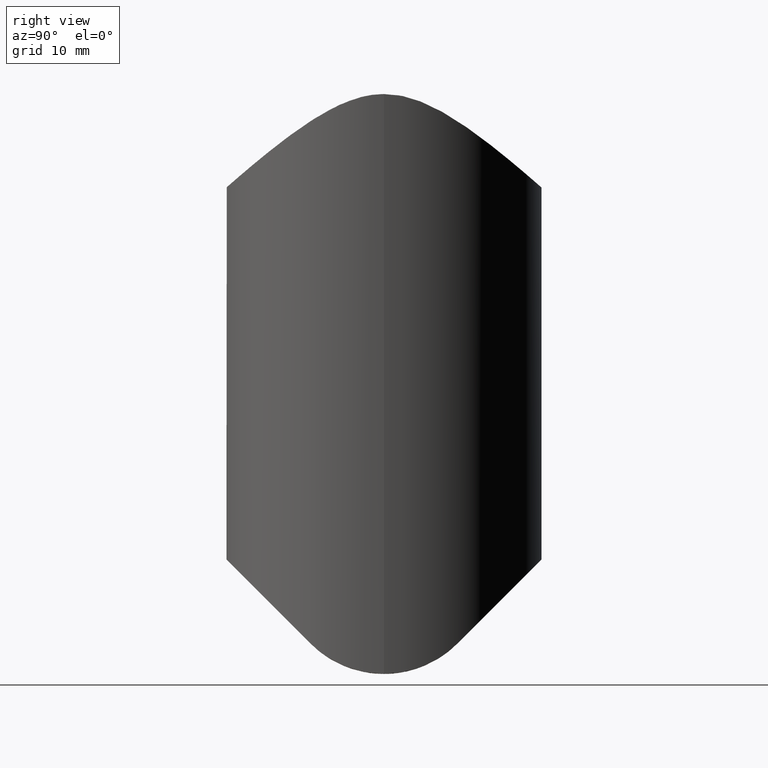
[diagram: clean part render]
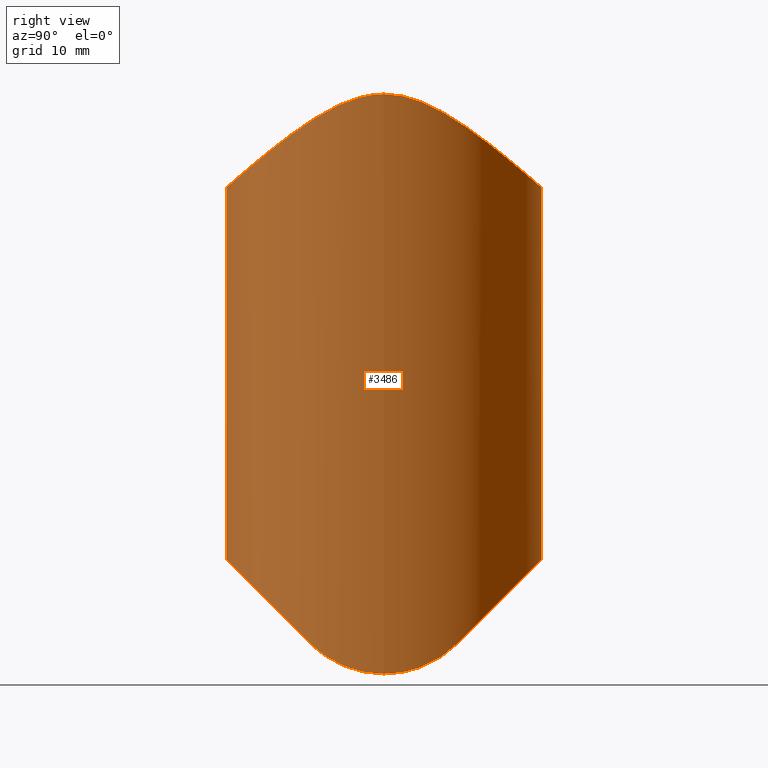
[diagram: same view with one face highlighted and labeled with its STEP entity id]
A machine part, right view. The second image highlights one B-rep face of the part: STEP entity #3486.
In plain terms, the highlighted cylindrical surface (bore or boss wall) has radius 21.2 mm, axis along (0, 0, 1).
Its self-contained STEP definition (entity closure, byte-faithful):
#53 = CARTESIAN_POINT ( 'NONE',  ( 20.37822105264515571, 5.861547358583872658, -40.60975741216689272 ) ) ;
#66 = CARTESIAN_POINT ( 'NONE',  ( -19.94419146322031366, 7.219722584351021766, 34.05163442060293022 ) ) ;
#100 = CARTESIAN_POINT ( 'NONE',  ( 19.09183637267333822, -9.243786917086966426, -38.43121308291303251 ) ) ;
#154 = CARTESIAN_POINT ( 'NONE',  ( -20.62931908667948733, -4.937671174590838596, 35.11586201277336272 ) ) ;
#203 = CARTESIAN_POINT ( 'NONE',  ( -10.00391576498439150, -18.69453692488314545, 25.69179903627292560 ) ) ;
#246 = CARTESIAN_POINT ( 'NONE',  ( -16.19715647493500654, -13.69350632152724323, 29.75343096745083216 ) ) ;
#296 = CARTESIAN_POINT ( 'NONE',  ( 0.5992993401474236981, -21.20478202979933968, 23.52080213603889192 ) ) ;
#390 = CARTESIAN_POINT ( 'NONE',  ( 14.26758304632108576, -15.73462341832112799, 28.15500989669029863 ) ) ;
#731 = EDGE_CURVE ( 'NONE', #8625, #7215, #2434, .T. ) ;
#809 = CARTESIAN_POINT ( 'NONE',  ( 21.19999999999999929, 0.7607316018210191766, 36.10856148159687251 ) ) ;
#856 = CARTESIAN_POINT ( 'NONE',  ( 16.16775112329284880, 13.77464031684857204, 29.69759144699613884 ) ) ;
#877 = CARTESIAN_POINT ( 'NONE',  ( -20.89062975067823658, -3.723830450166025763, -41.41783390835409051 ) ) ;
#900 = CARTESIAN_POINT ( 'NONE',  ( 18.35738798289526841, 10.62389000726081534, 31.97583591808911407 ) ) ;
#946 = CARTESIAN_POINT ( 'NONE',  ( 3.828703173773335244, 20.86444194102675098, 23.81915204452525003 ) ) ;
#971 = CARTESIAN_POINT ( 'NONE',  ( -19.41054783939787143, 8.561658490433368129, -38.99446201574200899 ) ) ;
#988 = CARTESIAN_POINT ( 'NONE',  ( 19.41009460546721144, 8.562612514642292894, -38.99365696708427720 ) ) ;
#1001 = CARTESIAN_POINT ( 'NONE',  ( 0.8570938160425978225, 21.19576360719492669, 23.52871889231639813 ) ) ;
#1015 = EDGE_CURVE ( 'NONE', #5379, #10726, #4618, .T. ) ;
#1092 = CARTESIAN_POINT ( 'NONE',  ( -20.36288625874305680, 5.937005181913807661, 34.68578424057155729 ) ) ;
#1153 = ORIENTED_EDGE ( 'NONE', *, *, #4220, .F. ) ;
#1180 = FACE_OUTER_BOUND ( 'NONE', #2340, .T. ) ;
#1189 = CARTESIAN_POINT ( 'NONE',  ( -21.17139254519067393, -1.327900722634554942, 36.05532838118423911 ) ) ;
#1236 = CARTESIAN_POINT ( 'NONE',  ( -20.45541735194242960, -5.611173856344445987, 34.83223599468176701 ) ) ;
#1284 = CARTESIAN_POINT ( 'NONE',  ( -14.40607568455914844, -15.60842448588201137, 28.25692576045749504 ) ) ;
#1334 = CARTESIAN_POINT ( 'NONE',  ( 5.052017920772571280, -20.60256207620233226, 24.04784085383190373 ) ) ;
#1424 = CARTESIAN_POINT ( 'NONE',  ( 20.39193468106632068, -5.807951388633579626, 34.73588361584385353 ) ) ;
#1473 = CARTESIAN_POINT ( 'NONE',  ( 9.776366241319037087, -18.82411369512748323, 25.58208157620547141 ) ) ;
#1614 = ORIENTED_EDGE ( 'NONE', *, *, #3523, .F. ) ;
#1616 = CARTESIAN_POINT ( 'NONE',  ( 21.19999999999999218, -4.607859233063393845E-16, 36.10856148159686541 ) ) ;
#1875 = CARTESIAN_POINT ( 'NONE',  ( -20.37822105264512018, -5.861547358583981904, -40.60975741216687140 ) ) ;
#1920 = CARTESIAN_POINT ( 'NONE',  ( -19.09162464916670032, -9.244189226472064647, -38.43081077352793073 ) ) ;
#1943 = CARTESIAN_POINT ( 'NONE',  ( -13.19870381461336883, 16.60337798851294266, 27.44154372066829595 ) ) ;
#1987 = CARTESIAN_POINT ( 'NONE',  ( 12.79854085659568064, 16.91417942586904033, 27.18536005029367431 ) ) ;
#2008 = CARTESIAN_POINT ( 'NONE',  ( -21.12346108678567091, 1.859530999978814103, -41.77499633901737752 ) ) ;
#2030 = CARTESIAN_POINT ( 'NONE',  ( -3.977638343958842526, 20.82676644983991565, 23.85199950302858340 ) ) ;
#2081 = CARTESIAN_POINT ( 'NONE',  ( -14.68694656133646426, 15.30210980942055343, 28.49542990981161239 ) ) ;
#2177 = CARTESIAN_POINT ( 'NONE',  ( -21.19613358253338475, 0.5540781783344892464, 36.10147572910654645 ) ) ;
#2313 = CARTESIAN_POINT ( 'NONE',  ( -20.05044987211627117, -6.920175649073054380, 34.20874045013990639 ) ) ;
#2340 = EDGE_LOOP ( 'NONE', ( #2456, #1614, #6661, #10323 ) ) ;
#2360 = CARTESIAN_POINT ( 'NONE',  ( -0.8999169650053071567, -21.19415226156729659, 23.53013339016800742 ) ) ;
#2368 = VERTEX_POINT ( 'NONE', #4819 ) ;
#2434 = B_SPLINE_CURVE_WITH_KNOTS ( 'NONE', 3,
 ( #5325, #5420, #988, #8623, #14040, #12982, #53, #10925, #10734, #7588, #8672, #8515, #9773, #3288, #10879, #6415, #13031, #9623, #7640, #11936, #5521, #3133, #6566, #13993, #100, #7490 ),
 .UNSPECIFIED., .F., .F.,
 ( 4, 2, 2, 2, 2, 2, 2, 2, 2, 2, 2, 2, 4 ),
 ( 1.561251128379126385E-17, 0.002812131151368518246, 0.004218196727052776936, 0.005624262302737036492, 0.008436393454105545198, 0.009842459029789800418, 0.01124852460547405390, 0.01265459018115830739, 0.01406065575684256261, 0.01687278690821106958, 0.01827885248389531786, 0.01968491805957956614, 0.02249704921094805576 ),
 .UNSPECIFIED. ) ;
#2456 = ORIENTED_EDGE ( 'NONE', *, *, #731, .F. ) ;
#2459 = CARTESIAN_POINT ( 'NONE',  ( 5.762301184145837141, -20.41495202547942256, 24.21140025201506774 ) ) ;
#2550 = CARTESIAN_POINT ( 'NONE',  ( -18.76061753692396294, 9.873157024643191448, -37.80184297535679860 ) ) ;
#2697 = CYLINDRICAL_SURFACE ( 'NONE', #5129, 21.19999999999999929 ) ;
#2948 = CARTESIAN_POINT ( 'NONE',  ( -21.07359397865521444, -2.356897955611011675, -41.69893950458479992 ) ) ;
#3008 = CARTESIAN_POINT ( 'NONE',  ( 16.96650338785486056, 12.77562585898296632, 30.45766644754966279 ) ) ;
#3025 = CARTESIAN_POINT ( 'NONE',  ( -21.19979146188292418, -0.4779389557462169202, -41.89112188967123984 ) ) ;
#3051 = CARTESIAN_POINT ( 'NONE',  ( 5.989666282539716669, 20.38969150912193129, 24.23362212893257350 ) ) ;
#3076 = CARTESIAN_POINT ( 'NONE',  ( -19.99062911680855947, 7.070452229573360725, -39.97747371601211341 ) ) ;
#3097 = CARTESIAN_POINT ( 'NONE',  ( -5.059804035448618009, 20.60052458868202407, 24.04961701857542522 ) ) ;
#3117 = CARTESIAN_POINT ( 'NONE',  ( -21.07702899861313739, 2.327078583938078093, -41.70419686316483165 ) ) ;
#3133 = CARTESIAN_POINT ( 'NONE',  ( 19.99062911680850974, -7.070452229573480629, -39.97747371601206368 ) ) ;
#3147 = CARTESIAN_POINT ( 'NONE',  ( -1.379351382647282076, 21.16843550293391729, 23.55273133158973309 ) ) ;
#3248 = CARTESIAN_POINT ( 'NONE',  ( -20.90685473131000549, -3.532539769826033460, 35.58623692906678571 ) ) ;
#3288 = CARTESIAN_POINT ( 'NONE',  ( 21.20020442195959731, -0.4592560722174832688, -41.89174889746874442 ) ) ;
#3299 = CARTESIAN_POINT ( 'NONE',  ( -18.30954737960178136, 10.76482312935650754, 31.89212507464895552 ) ) ;
#3344 = CARTESIAN_POINT ( 'NONE',  ( -18.92877723315591965, 9.635848647165394354, 32.65189449167129965 ) ) ;
#3359 = DIRECTION ( 'NONE',  ( 1.000000000000000000, 0.000000000000000000, 0.000000000000000000 ) ) ;
#3434 = CARTESIAN_POINT ( 'NONE',  ( 16.88200995086582523, -12.83973443144087234, 30.39691521375912231 ) ) ;
#3486 = ADVANCED_FACE ( 'NONE', ( #1180, #13695 ), #2697, .T. ) ;
#3513 =( BOUNDED_CURVE ( )  B_SPLINE_CURVE ( 3, ( #5548, #7756, #9991, #9944 ),
 .UNSPECIFIED., .F., .F. ) 
 B_SPLINE_CURVE_WITH_KNOTS ( ( 4, 4 ),
 ( 5.196831337156892161, 7.369539277202277638 ),
 .UNSPECIFIED. ) 
 CURVE ( )  GEOMETRIC_REPRESENTATION_ITEM ( )  RATIONAL_B_SPLINE_CURVE ( ( 1.000000000000000000, 0.6438099693284029534, 0.6438099693284029534, 1.000000000000000000 ) ) 
 REPRESENTATION_ITEM ( '' )  );
#3523 = EDGE_CURVE ( 'NONE', #10726, #8625, #3513, .T. ) ;
#3577 = CARTESIAN_POINT ( 'NONE',  ( -6.057539750127693523, -20.37040628734392200, 24.25041600823640664 ) ) ;
#3627 = CARTESIAN_POINT ( 'NONE',  ( 16.06516379777915304, -13.84816061437716961, 29.63490615289967778 ) ) ;
#3758 = CARTESIAN_POINT ( 'NONE',  ( 20.65678568497506973, -4.781809977681571233, 35.16336350674345823 ) ) ;
#4074 = CARTESIAN_POINT ( 'NONE',  ( -20.89346145033796631, 3.710667487130780096, -41.42222334977741838 ) ) ;
#4097 = CARTESIAN_POINT ( 'NONE',  ( -14.20856944367890051, 15.74784103867826701, 28.13746971191927670 ) ) ;
#4148 = CARTESIAN_POINT ( 'NONE',  ( -2.501427200603757228, 21.05526489811397184, 23.65196207914110005 ) ) ;
#4169 = CARTESIAN_POINT ( 'NONE',  ( -18.76061753692396294, 9.873157024643191448, -37.80184297535679860 ) ) ;
#4214 = CARTESIAN_POINT ( 'NONE',  ( -21.18406620477865232, -0.9476406119230708081, -41.86728111303332156 ) ) ;
#4220 = EDGE_CURVE ( 'NONE', #2368, #2368, #8311, .T. ) ;
#4246 = CARTESIAN_POINT ( 'NONE',  ( -16.86133393032116956, 12.91574079727568325, 30.35350802484506971 ) ) ;
#4390 = CARTESIAN_POINT ( 'NONE',  ( -20.54646411576973009, 5.272054584498080843, 34.98031200607299951 ) ) ;
#4484 = CARTESIAN_POINT ( 'NONE',  ( -19.04726911328291195, -9.403061671351816031, 32.80248823128799529 ) ) ;
#4536 = CARTESIAN_POINT ( 'NONE',  ( -9.377422683829413685, -19.01651874759216554, 25.41734066544023918 ) ) ;
#4590 = CARTESIAN_POINT ( 'NONE',  ( 17.26894050692186866, -12.31449342644357792, 30.78460162156350677 ) ) ;
#4618 = B_SPLINE_CURVE_WITH_KNOTS ( 'NONE', 3,
 ( #5179, #1920, #9476, #13833, #6357, #12773, #1875, #13783, #877, #2948, #11611, #4214, #3025, #8498, #13930, #2008, #3117, #4074, #7381, #13977, #8411, #3076, #6230, #971, #10722, #4169 ),
 .UNSPECIFIED., .F., .F.,
 ( 4, 2, 2, 2, 2, 2, 2, 2, 2, 2, 2, 2, 4 ),
 ( 1.163687884334659274E-17, 0.002812131151368530389, 0.004218196727052783007, 0.005624262302737037360, 0.008436393454105536524, 0.009842459029789788275, 0.01124852460547403656, 0.01265459018115828657, 0.01406065575684253485, 0.01687278690821103488, 0.01827885248389528317, 0.01968491805957953145, 0.02249704921094801413 ),
 .UNSPECIFIED. ) ;
#4639 = CARTESIAN_POINT ( 'NONE',  ( -1.646797548463653893, -21.14920743253038182, 23.56961009978418531 ) ) ;
#4732 = CARTESIAN_POINT ( 'NONE',  ( -4.244829350413268365, -20.77400722764772212, 23.89811363479034156 ) ) ;
#4819 = CARTESIAN_POINT ( 'NONE',  ( 21.19999999999999929, 0.000000000000000000, 36.10856148159686541 ) ) ;
#4964 = CARTESIAN_POINT ( 'NONE',  ( 21.18705007545193908, -0.7651361944628163325, 36.08485221934159881 ) ) ;
#5129 = AXIS2_PLACEMENT_3D ( 'NONE', #8846, #11962, #3359 ) ;
#5176 =( BOUNDED_CURVE ( )  B_SPLINE_CURVE ( 3, ( #7409, #9593, #10895, #12946 ),
 .UNSPECIFIED., .F., .F. ) 
 B_SPLINE_CURVE_WITH_KNOTS ( ( 4, 4 ),
 ( 5.196831337156896602, 7.369539277202275862 ),
 .UNSPECIFIED. ) 
 CURVE ( )  GEOMETRIC_REPRESENTATION_ITEM ( )  RATIONAL_B_SPLINE_CURVE ( ( 1.000000000000000000, 0.6438099693284047298, 0.6438099693284047298, 1.000000000000000000 ) ) 
 REPRESENTATION_ITEM ( '' )  );
#5179 = CARTESIAN_POINT ( 'NONE',  ( -18.76061753692392386, -9.873157024643271384, -37.80184297535672044 ) ) ;
#5292 = CARTESIAN_POINT ( 'NONE',  ( 11.70097173117911105, 17.69122308532080012, 26.53936057573138640 ) ) ;
#5325 = CARTESIAN_POINT ( 'NONE',  ( 18.76061753692390965, 9.873157024643191448, -37.80184297535672044 ) ) ;
#5379 = VERTEX_POINT ( 'NONE', #7138 ) ;
#5383 = CARTESIAN_POINT ( 'NONE',  ( -21.06282559943587884, -2.436221136448912805, 35.86037302850127162 ) ) ;
#5420 = CARTESIAN_POINT ( 'NONE',  ( 19.09162464916675006, 9.244189226471975829, -38.43081077352793073 ) ) ;
#5485 = CARTESIAN_POINT ( 'NONE',  ( -21.20554532945919490, -0.5806661566480650905, 36.11872383202573644 ) ) ;
#5521 = CARTESIAN_POINT ( 'NONE',  ( 20.25508682692433027, -6.272798805176956094, -40.41133697097598798 ) ) ;
#5548 = CARTESIAN_POINT ( 'NONE',  ( -18.76061753692396294, 9.873157024643191448, -37.80184297535679860 ) ) ;
#5632 = CARTESIAN_POINT ( 'NONE',  ( -3.875882088453088237, -20.84607472227184033, 23.83510850980708895 ) ) ;
#5722 = CARTESIAN_POINT ( 'NONE',  ( 19.74765873688392759, -7.739758821920953658, 33.76654086413228129 ) ) ;
#5768 = CARTESIAN_POINT ( 'NONE',  ( -18.43835679299219521, -10.54151119859169228, 32.04397155093638361 ) ) ;
#5812 = CARTESIAN_POINT ( 'NONE',  ( -13.41327811795210145, -16.47184304281851652, 27.55248098906725573 ) ) ;
#6216 = EDGE_LOOP ( 'NONE', ( #1153 ) ) ;
#6230 = CARTESIAN_POINT ( 'NONE',  ( -19.85036992409665757, 7.453901982157362660, -39.74378386386362649 ) ) ;
#6250 = CARTESIAN_POINT ( 'NONE',  ( -12.66552224037674534, 17.01437272971190851, 27.10256723657073863 ) ) ;
#6298 = CARTESIAN_POINT ( 'NONE',  ( 21.04311487925438939, 2.600411042969252851, 35.82526941153323463 ) ) ;
#6336 = CARTESIAN_POINT ( 'NONE',  ( 11.12876944867947593, 18.05727372709984380, 26.23171522967705016 ) ) ;
#6357 = CARTESIAN_POINT ( 'NONE',  ( -19.98972343943037089, -7.072982343735226607, -39.97596949918038689 ) ) ;
#6380 = CARTESIAN_POINT ( 'NONE',  ( -10.98734972168231572, 18.18173473906202986, 26.13033894899644594 ) ) ;
#6415 = CARTESIAN_POINT ( 'NONE',  ( 21.12346108678567802, -1.859530999978940669, -41.77499633901737042 ) ) ;
#6566 = CARTESIAN_POINT ( 'NONE',  ( 19.85036992409661494, -7.453901982157483452, -39.74378386386362649 ) ) ;
#6661 = ORIENTED_EDGE ( 'NONE', *, *, #1015, .F. ) ;
#6750 = CARTESIAN_POINT ( 'NONE',  ( -7.428390811851950382, -19.90728424505650196, 24.65346359776447116 ) ) ;
#6805 = CARTESIAN_POINT ( 'NONE',  ( 19.98206215831099541, -7.115016007147695554, 34.10725467785898957 ) ) ;
#6848 = CARTESIAN_POINT ( 'NONE',  ( 11.57557648746820966, -17.77401718948302189, 26.47002558068056288 ) ) ;
#6899 = CARTESIAN_POINT ( 'NONE',  ( 20.57309299853876539, -5.129438940379512424, 35.02590606750470670 ) ) ;
#6996 = CARTESIAN_POINT ( 'NONE',  ( 21.14836757930289579, -1.527087688503413920, 36.01434459721696157 ) ) ;
#7040 = CARTESIAN_POINT ( 'NONE',  ( 21.19740071756693567, -0.3830497548331253110, 36.10379352461025348 ) ) ;
#7138 = CARTESIAN_POINT ( 'NONE',  ( -18.76061753692392386, -9.873157024643271384, -37.80184297535672044 ) ) ;
#7215 = VERTEX_POINT ( 'NONE', #12201 ) ;
#7360 = CARTESIAN_POINT ( 'NONE',  ( 20.00715471155248082, 7.043729142430191104, 34.14443515223382519 ) ) ;
#7381 = CARTESIAN_POINT ( 'NONE',  ( -20.71517503758463974, 4.591754994418201896, -41.14663139746622278 ) ) ;
#7402 = CARTESIAN_POINT ( 'NONE',  ( 7.355998353420206470, 19.93388680068092000, 24.63040782151362507 ) ) ;
#7409 = CARTESIAN_POINT ( 'NONE',  ( 18.76061753692390965, -9.873157024643271384, -37.80184297535672044 ) ) ;
#7490 = CARTESIAN_POINT ( 'NONE',  ( 18.76061753692390965, -9.873157024643271384, -37.80184297535672044 ) ) ;
#7550 = CARTESIAN_POINT ( 'NONE',  ( -20.97635834696324153, 3.158545356204265797, 35.70651495239139450 ) ) ;
#7588 = CARTESIAN_POINT ( 'NONE',  ( 21.07359397865523221, 2.356897955610893103, -41.69893950458481413 ) ) ;
#7640 = CARTESIAN_POINT ( 'NONE',  ( 20.71517503758461487, -4.591754994418326241, -41.14663139746621567 ) ) ;
#7742 = CARTESIAN_POINT ( 'NONE',  ( -17.38037110746650171, -12.15634875530774117, 30.89956891561283925 ) ) ;
#7756 = CARTESIAN_POINT ( 'NONE',  ( -9.713330760469776948, 27.06448564792726685, -20.61051435207272675 ) ) ;
#7794 = CARTESIAN_POINT ( 'NONE',  ( -3.134448869397681303, -20.97037251875283204, 23.72634411886764383 ) ) ;
#7882 = CARTESIAN_POINT ( 'NONE',  ( 20.29439568384520243, -6.139549580194636036, 34.58317013806716744 ) ) ;
#7927 = CARTESIAN_POINT ( 'NONE',  ( 18.76061753692390965, 9.873157024643191448, -37.80184297535672044 ) ) ;
#8015 = CARTESIAN_POINT ( 'NONE',  ( 20.99808804751277691, -3.012252433823535469, 35.74480758918370782 ) ) ;
#8064 = CARTESIAN_POINT ( 'NONE',  ( 20.88157022807384777, -3.730151578770624088, 35.53960156782886770 ) ) ;
#8311 = B_SPLINE_CURVE_WITH_KNOTS ( 'NONE', 3,
 ( #8529, #809, #10744, #6298, #8478, #13858, #12896, #9500, #13812, #7360, #10550, #9587, #13956, #900, #8433, #3008, #856, #14005, #12798, #11633, #1987, #5292, #6336, #9543, #13907, #7402, #3051, #946, #12705, #10644, #1001, #8347, #3147, #4148, #10592, #11716, #2030, #3097, #9449, #10695, #11761, #12841, #6380, #6250, #1943, #4097, #2081, #9635, #4246, #3299, #3344, #9831, #66, #1092, #4390, #12047, #7550, #8578, #10791, #11900, #2177, #5485, #1189, #5383, #10937, #3248, #11988, #154, #1236, #2313, #9877, #4484, #5768, #7742, #12090, #246, #8833, #1284, #5812, #11212, #8978, #12140, #203, #4536, #13337, #6750, #3577, #4732, #5632, #7794, #13291, #4639, #2360, #296, #10072, #11166, #13244, #1334, #2459, #12278, #8882, #11077, #1473, #9929, #6848, #11121, #390, #9019, #3627, #3434, #4590, #10024, #12182, #5722, #6805, #7882, #1424, #6899, #3758, #8064, #8015, #9255, #6996, #13473, #4964, #7040, #9165, #1616 ),
 .UNSPECIFIED., .T., .F.,
 ( 4, 2, 2, 2, 2, 2, 2, 2, 2, 2, 2, 2, 2, 2, 2, 2, 2, 2, 2, 2, 2, 2, 2, 2, 2, 2, 2, 2, 2, 2, 2, 2, 2, 2, 2, 2, 2, 2, 2, 2, 2, 2, 2, 2, 2, 2, 2, 2, 2, 2, 2, 2, 2, 2, 2, 2, 2, 2, 2, 2, 2, 2, 2, 4 ),
 ( 0.000000000000000000, 0.002241287828992608294, 0.003361931743488913524, 0.004482575657985219189, 0.006723863486977819243, 0.008965151315970419296, 0.01120643914496302282, 0.01344772697395562461, 0.01793030263194083859, 0.02017159046093345079, 0.02241287828992605605, 0.02465416611891866824, 0.02689545394791127350, 0.03137802960589648749, 0.03361931743488909968, 0.03586060526388170494, 0.03810189309287431714, 0.03922253700737061977, 0.04034318092186692239, 0.04258446875085952765, 0.04482575657985213985, 0.04930833223783735730, 0.05154962006682996256, 0.05379090789582257476, 0.05827348355380779221, 0.06275605921179300273, 0.06499734704078562186, 0.06723863486977822712, 0.06947992269877083238, 0.07060056661326713501, 0.07172121052776343764, 0.07396249835675604289, 0.07508314227125235940, 0.07620378618574866203, 0.07844507401474126729, 0.08068636184373388642, 0.08516893750171908306, 0.08741022533071170220, 0.08965151315970430745, 0.09413408881768953185, 0.09637537664668213711, 0.09749602056117843973, 0.09861666447567474236, 0.1030992401336599668, 0.1042198840481562694, 0.1053405279626525859, 0.1075818157916452050, 0.1098231036206378380, 0.1120643914496304572, 0.1143056792786230902, 0.1165469671076156954, 0.1187882549366083285, 0.1210295427656009476, 0.1255121184235861720, 0.1277534062525788050, 0.1299946940815714103, 0.1344772697395566208, 0.1367185575685492260, 0.1378392014830455148, 0.1389598453975418313, 0.1412011332265344643, 0.1423217771410307531, 0.1428820990982789252, 0.1434424210555270696 ),
 .UNSPECIFIED. ) ;
#8347 = CARTESIAN_POINT ( 'NONE',  ( -0.6328581008026452626, 21.20364344460252681, 23.52180162452549439 ) ) ;
#8411 = CARTESIAN_POINT ( 'NONE',  ( -20.25508682692436935, 6.272798805176833525, -40.41133697097599509 ) ) ;
#8433 = CARTESIAN_POINT ( 'NONE',  ( 18.02703324573773003, 11.17478347359660340, 31.59651591960012951 ) ) ;
#8478 = CARTESIAN_POINT ( 'NONE',  ( 20.99518966925268515, 2.962050479155549088, 35.74028062210823720 ) ) ;
#8498 = CARTESIAN_POINT ( 'NONE',  ( -21.20020442195959731, 0.4592560722173618104, -41.89174889746876573 ) ) ;
#8515 = CARTESIAN_POINT ( 'NONE',  ( 21.18406620477865943, 0.9476406119229469072, -41.86728111303332156 ) ) ;
#8529 = CARTESIAN_POINT ( 'NONE',  ( 21.19999999999999218, -4.607859233063393845E-16, 36.10856148159686541 ) ) ;
#8578 = CARTESIAN_POINT ( 'NONE',  ( -21.10295424153486010, 2.059448189816778019, 35.93211882720227379 ) ) ;
#8623 = CARTESIAN_POINT ( 'NONE',  ( 19.84957469726052892, 7.455998307077904563, -39.74244542270219682 ) ) ;
#8625 = VERTEX_POINT ( 'NONE', #7927 ) ;
#8672 = CARTESIAN_POINT ( 'NONE',  ( 21.12091805891888185, 1.889313114929739745, -41.77111903822257233 ) ) ;
#8833 = CARTESIAN_POINT ( 'NONE',  ( -15.76577616875667331, -14.18836793598355150, 29.37182178562772350 ) ) ;
#8846 = CARTESIAN_POINT ( 'NONE',  ( 0.000000000000000000, 0.000000000000000000, -46.00000000000000000 ) ) ;
#8882 = CARTESIAN_POINT ( 'NONE',  ( 7.838284737744086961, -19.71068788427851715, 24.82172239114206747 ) ) ;
#8978 = CARTESIAN_POINT ( 'NONE',  ( -11.20650900769452107, -18.00919104853146635, 26.27220752538120507 ) ) ;
#9019 = CARTESIAN_POINT ( 'NONE',  ( 15.63389383173102409, -14.33342034139705312, 29.25906332649878294 ) ) ;
#9165 = CARTESIAN_POINT ( 'NONE',  ( 21.19999999999998863, -0.1901829004552553770, 36.10856148159685830 ) ) ;
#9255 = CARTESIAN_POINT ( 'NONE',  ( 21.11770560777527095, -1.902853503920007405, 35.95870011411939515 ) ) ;
#9449 = CARTESIAN_POINT ( 'NONE',  ( -5.765700953092397718, 20.41380111013801013, 24.21239766642771585 ) ) ;
#9476 = CARTESIAN_POINT ( 'NONE',  ( -19.41009460546716525, -8.562612514642394146, -38.99365696708427720 ) ) ;
#9500 = CARTESIAN_POINT ( 'NONE',  ( 20.59421893871964926, 5.081957251331890468, 35.05820584653805838 ) ) ;
#9543 = CARTESIAN_POINT ( 'NONE',  ( 9.932899202193443244, 18.74172236845740258, 25.65225074787231208 ) ) ;
#9587 = CARTESIAN_POINT ( 'NONE',  ( 19.25834572351404717, 8.887863037567722557, 33.09655174949588741 ) ) ;
#9593 = CARTESIAN_POINT ( 'NONE',  ( 9.713330760469684577, -27.06448564792724554, -20.61051435207275162 ) ) ;
#9623 = CARTESIAN_POINT ( 'NONE',  ( 20.89346145033794144, -3.710667487130901776, -41.42222334977739706 ) ) ;
#9635 = CARTESIAN_POINT ( 'NONE',  ( -16.04934571228517726, 13.91195018205658585, 29.59185218863818179 ) ) ;
#9773 = CARTESIAN_POINT ( 'NONE',  ( 21.19979146188292773, 0.4779389557460976823, -41.89112188967124695 ) ) ;
#9831 = CARTESIAN_POINT ( 'NONE',  ( -19.70897052989555576, 7.837316334376752458, 33.71178288087186559 ) ) ;
#9877 = CARTESIAN_POINT ( 'NONE',  ( -19.81796637703257957, -7.558585585020061615, 33.86693712264892753 ) ) ;
#9929 = CARTESIAN_POINT ( 'NONE',  ( 10.99019997192858078, -18.14221865893224361, 26.16012407793472860 ) ) ;
#9944 = CARTESIAN_POINT ( 'NONE',  ( 18.76061753692390965, 9.873157024643191448, -37.80184297535672044 ) ) ;
#9991 = CARTESIAN_POINT ( 'NONE',  ( 9.713330760469689906, 27.06448564792730593, -20.61051435207269478 ) ) ;
#10024 = CARTESIAN_POINT ( 'NONE',  ( 18.35259929000591583, -10.69178739157260338, 31.94216637868228759 ) ) ;
#10072 = CARTESIAN_POINT ( 'NONE',  ( 1.351634497376335009, -21.17047566304135486, 23.55094095006732502 ) ) ;
#10323 = ORIENTED_EDGE ( 'NONE', *, *, #12671, .F. ) ;
#10550 = CARTESIAN_POINT ( 'NONE',  ( 19.77521756840307532, 7.669338922180766183, 33.80576052837285062 ) ) ;
#10592 = CARTESIAN_POINT ( 'NONE',  ( -2.875685406383693632, 21.00737035516542051, 23.69393772533690168 ) ) ;
#10644 = CARTESIAN_POINT ( 'NONE',  ( 1.600552284528298008, 21.15267129505331667, 23.56656937056847667 ) ) ;
#10695 = CARTESIAN_POINT ( 'NONE',  ( -7.148069708100685204, 19.97177214703030756, 24.59595939619725868 ) ) ;
#10722 = CARTESIAN_POINT ( 'NONE',  ( -19.09183637267338085, 9.243786917086877608, -38.43121308291303251 ) ) ;
#10726 = VERTEX_POINT ( 'NONE', #2550 ) ;
#10734 = CARTESIAN_POINT ( 'NONE',  ( 20.89062975067825789, 3.723830450165912076, -41.41783390835409051 ) ) ;
#10744 = CARTESIAN_POINT ( 'NONE',  ( 21.15925873928337708, 1.505010053001364811, 36.03311591850231821 ) ) ;
#10791 = CARTESIAN_POINT ( 'NONE',  ( -21.13600295169353771, 1.688561807819377369, 35.99192591776143502 ) ) ;
#10879 = CARTESIAN_POINT ( 'NONE',  ( 21.18489083157697550, -0.9267493075242991818, -41.86853181177443872 ) ) ;
#10895 = CARTESIAN_POINT ( 'NONE',  ( -9.713330760469684577, -27.06448564792724554, -20.61051435207275517 ) ) ;
#10925 = CARTESIAN_POINT ( 'NONE',  ( 20.71348879695353773, 4.598902552571314750, -41.14397864145708894 ) ) ;
#10937 = CARTESIAN_POINT ( 'NONE',  ( -21.01685719160356669, -2.804839704732393635, 35.77850971382740397 ) ) ;
#11077 = CARTESIAN_POINT ( 'NONE',  ( 9.146863275391044823, -19.13856882639603896, 25.31329395330531185 ) ) ;
#11121 = CARTESIAN_POINT ( 'NONE',  ( 13.26122689838578772, -16.59694229147573097, 27.44996586617462953 ) ) ;
#11166 = CARTESIAN_POINT ( 'NONE',  ( 2.861955765926945894, -21.01963759934509568, 23.68320244223010818 ) ) ;
#11212 = CARTESIAN_POINT ( 'NONE',  ( -11.77674396363668485, -17.64079681843034564, 26.58156199386483465 ) ) ;
#11611 = CARTESIAN_POINT ( 'NONE',  ( -21.12091805891886764, -1.889313114929860760, -41.77111903822256522 ) ) ;
#11633 = CARTESIAN_POINT ( 'NONE',  ( 13.32389046653464604, 16.50317929767390268, 27.52373680058484595 ) ) ;
#11716 = CARTESIAN_POINT ( 'NONE',  ( -3.613022005524566094, 20.89318663543610910, 23.79389897083148142 ) ) ;
#11761 = CARTESIAN_POINT ( 'NONE',  ( -7.827907481127830636, 19.71471125336513097, 24.81824697376244870 ) ) ;
#11900 = CARTESIAN_POINT ( 'NONE',  ( -21.18264441055352165, 0.9367163545436664185, 36.07670630820558699 ) ) ;
#11936 = CARTESIAN_POINT ( 'NONE',  ( 20.37928315794467693, -5.857942527880116046, -40.61146670772696865 ) ) ;
#11962 = DIRECTION ( 'NONE',  ( 0.000000000000000000, 0.000000000000000000, 1.000000000000000000 ) ) ;
#11988 = CARTESIAN_POINT ( 'NONE',  ( -20.84335338306961916, -3.888697776966772324, 35.47677541651901834 ) ) ;
#12047 = CARTESIAN_POINT ( 'NONE',  ( -20.85511948945990568, 3.875014617119539651, 35.49401966161518374 ) ) ;
#12090 = CARTESIAN_POINT ( 'NONE',  ( -17.00333266243378461, -12.67859107400535557, 30.51641052322288061 ) ) ;
#12140 = CARTESIAN_POINT ( 'NONE',  ( -10.30975277606171403, -18.52749846274447520, 25.83370390385972470 ) ) ;
#12182 = CARTESIAN_POINT ( 'NONE',  ( 18.96977030825059174, -9.556326872388794413, 32.70364872690721114 ) ) ;
#12201 = CARTESIAN_POINT ( 'NONE',  ( 18.76061753692390965, -9.873157024643271384, -37.80184297535672044 ) ) ;
#12278 = CARTESIAN_POINT ( 'NONE',  ( 7.154830645487485263, -19.96954630365516792, 24.59788955469422689 ) ) ;
#12671 = EDGE_CURVE ( 'NONE', #7215, #5379, #5176, .T. ) ;
#12705 = CARTESIAN_POINT ( 'NONE',  ( 3.084421250912813939, 20.98770154349920247, 23.71118267936977020 ) ) ;
#12773 = CARTESIAN_POINT ( 'NONE',  ( -20.25398276371069173, -6.276328913227251505, -40.40954391420858371 ) ) ;
#12798 = CARTESIAN_POINT ( 'NONE',  ( 14.33064357019541646, 15.63693189086025370, 28.22680932424991695 ) ) ;
#12841 = CARTESIAN_POINT ( 'NONE',  ( -9.783719388593977939, 18.86114355684420474, 25.55169751896621833 ) ) ;
#12896 = CARTESIAN_POINT ( 'NONE',  ( 20.81536095300337408, 4.035812705794619148, 35.42902268098336549 ) ) ;
#12946 = CARTESIAN_POINT ( 'NONE',  ( -18.76061753692392386, -9.873157024643271384, -37.80184297535672044 ) ) ;
#12982 = CARTESIAN_POINT ( 'NONE',  ( 20.25398276371073436, 6.276328913227144923, -40.40954391420859793 ) ) ;
#13031 = CARTESIAN_POINT ( 'NONE',  ( 21.07702899861312673, -2.327078583938205991, -41.70419686316484587 ) ) ;
#13244 = CARTESIAN_POINT ( 'NONE',  ( 3.602050574966665142, -20.90487217925428709, 23.78377219468315928 ) ) ;
#13291 = CARTESIAN_POINT ( 'NONE',  ( -2.763046046473152106, -21.02250712551967737, 23.68066957285884300 ) ) ;
#13337 = CARTESIAN_POINT ( 'NONE',  ( -9.055718434051112098, -19.17189410041114783, 25.28441458075507242 ) ) ;
#13473 = CARTESIAN_POINT ( 'NONE',  ( 21.17929872054909168, -0.9558596785980353339, 36.07067905352975146 ) ) ;
#13695 = FACE_OUTER_BOUND ( 'NONE', #6216, .T. ) ;
#13783 = CARTESIAN_POINT ( 'NONE',  ( -20.71348879695350220, -4.598902552571428437, -41.14397864145706052 ) ) ;
#13812 = CARTESIAN_POINT ( 'NONE',  ( 20.41661273894699846, 5.749981230559304990, 34.77056862858850650 ) ) ;
#13833 = CARTESIAN_POINT ( 'NONE',  ( -19.84957469726049339, -7.455998307078012033, -39.74244542270216840 ) ) ;
#13858 = CARTESIAN_POINT ( 'NONE',  ( 20.88149335484289537, 3.678990019096604946, 35.54245075639207840 ) ) ;
#13907 = CARTESIAN_POINT ( 'NONE',  ( 9.307140707012026226, 19.06107999430647126, 25.37959706639172097 ) ) ;
#13930 = CARTESIAN_POINT ( 'NONE',  ( -21.18489083157698261, 0.9267493075241739486, -41.86853181177444583 ) ) ;
#13956 = CARTESIAN_POINT ( 'NONE',  ( 18.97254326586879714, 9.481736890763235337, 32.72508199186214739 ) ) ;
#13977 = CARTESIAN_POINT ( 'NONE',  ( -20.37928315794470535, 5.857942527879989925, -40.61146670772696865 ) ) ;
#13993 = CARTESIAN_POINT ( 'NONE',  ( 19.41054783939781458, -8.561658490433480040, -38.99446201574200188 ) ) ;
#14005 = CARTESIAN_POINT ( 'NONE',  ( 14.81171923180427719, 15.18147543748700556, 28.59161201293681742 ) ) ;
#14040 = CARTESIAN_POINT ( 'NONE',  ( 19.98972343943040997, 7.072982343735124466, -39.97596949918040110 ) ) ;